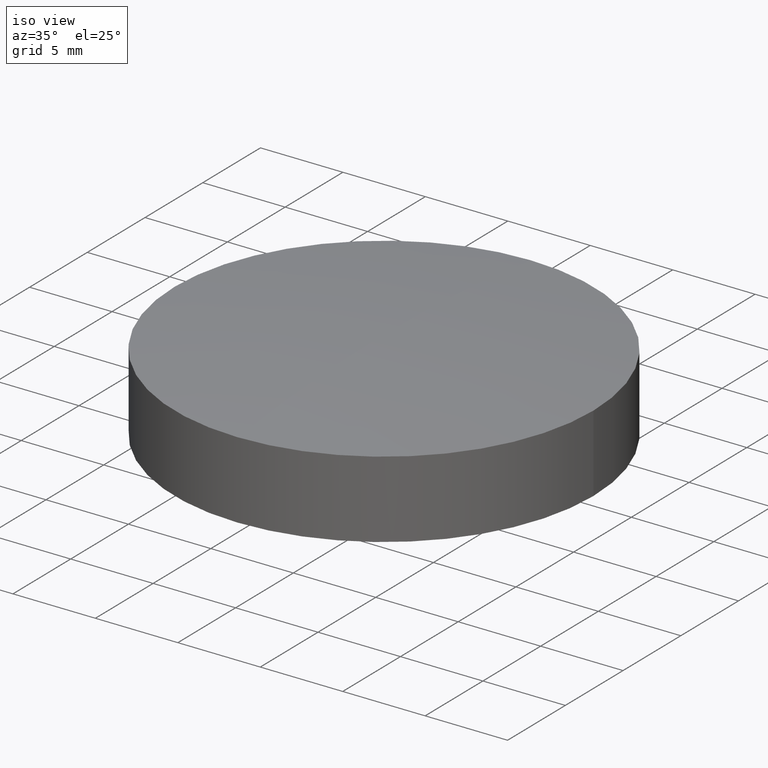
[diagram: clean part render]
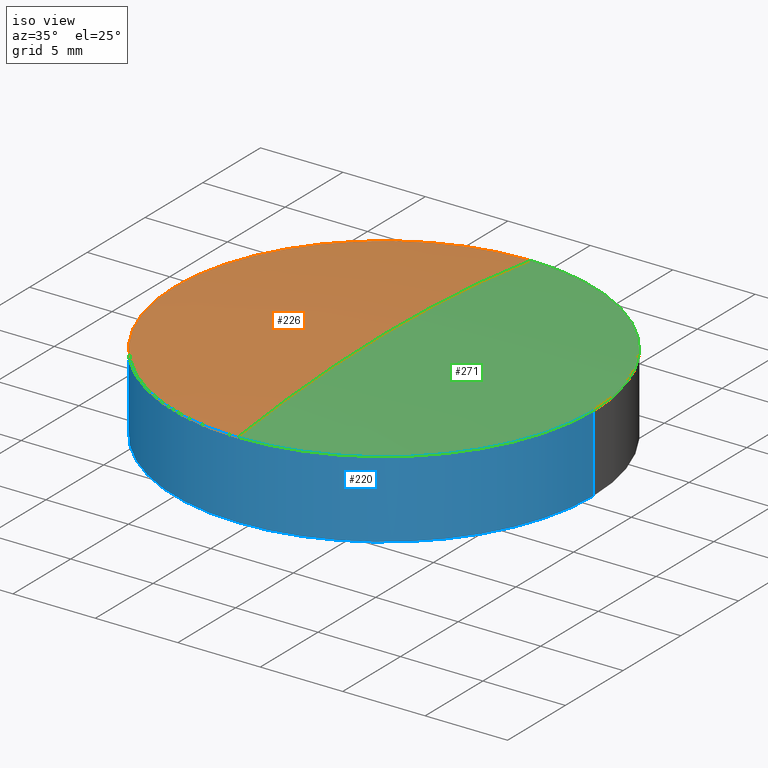
[diagram: same view with three faces highlighted in distinct colors, each labeled with its STEP entity id]
A machine part, iso view with three faces highlighted in distinct colors.
Their STEP definitions:

[orange] entity #226 — the highlighted spherical surface has radius 100 mm.
#1 = SPHERICAL_SURFACE ( 'NONE', #3, 100.0000000000000000 ) ;
#3 = AXIS2_PLACEMENT_3D ( 'NONE', #5, #9, #8 ) ;
#5 = CARTESIAN_POINT ( 'NONE',  ( 0.0000000000000000000, 0.0000000000000000000, -97.25569719235952000 ) ) ;
#8 = DIRECTION ( 'NONE',  ( 0.0000000000000000000, 1.000000000000000000, 0.0000000000000000000 ) ) ;
#9 = DIRECTION ( 'NONE',  ( -1.000000000000000000, 0.0000000000000000000, 0.0000000000000000000 ) ) ;
#11 = DIRECTION ( 'NONE',  ( 1.000000000000000000, 0.0000000000000000000, 0.0000000000000000000 ) ) ;
#19 = AXIS2_PLACEMENT_3D ( 'NONE', #21, #22, #11 ) ;
#20 = CIRCLE ( 'NONE', #19, 12.70000000000000100 ) ;
#21 = CARTESIAN_POINT ( 'NONE',  ( 0.0000000000000000000, 0.0000000000000000000, 1.934574508044651300 ) ) ;
#22 = DIRECTION ( 'NONE',  ( -0.0000000000000000000, -0.0000000000000000000, 1.000000000000000000 ) ) ;
#25 = DIRECTION ( 'NONE',  ( -0.0000000000000000000, -0.0000000000000000000, 1.000000000000000000 ) ) ;
#26 = CARTESIAN_POINT ( 'NONE',  ( 0.0000000000000000000, 12.69999999999999200, 1.934574508044653700 ) ) ;
#43 = CIRCLE ( 'NONE', #63, 100.0000000000000000 ) ;
#46 = CARTESIAN_POINT ( 'NONE',  ( 0.0000000000000000000, 6.123031769111886300E-015, 2.744302807640486300 ) ) ;
#47 = CARTESIAN_POINT ( 'NONE',  ( -1.555250069354418500E-015, -12.69999999999999200, 1.934574508044653700 ) ) ;
#48 = DIRECTION ( 'NONE',  ( -1.224606353822377300E-016, -1.000000000000000000, 0.0000000000000000000 ) ) ;
#49 = DIRECTION ( 'NONE',  ( 1.000000000000000000, 0.0000000000000000000, 0.0000000000000000000 ) ) ;
#54 = DIRECTION ( 'NONE',  ( -1.000000000000000000, 1.224606353822377300E-016, 0.0000000000000000000 ) ) ;
#55 = CARTESIAN_POINT ( 'NONE',  ( 0.0000000000000000000, 0.0000000000000000000, -97.25569719235952000 ) ) ;
#56 = AXIS2_PLACEMENT_3D ( 'NONE', #55, #54, #48 ) ;
#57 = CIRCLE ( 'NONE', #56, 100.0000000000000000 ) ;
#58 = AXIS2_PLACEMENT_3D ( 'NONE', #60, #25, #62 ) ;
#59 = CIRCLE ( 'NONE', #58, 12.70000000000000100 ) ;
#60 = CARTESIAN_POINT ( 'NONE',  ( 0.0000000000000000000, 0.0000000000000000000, 1.934574508044651300 ) ) ;
#62 = DIRECTION ( 'NONE',  ( 1.000000000000000000, 0.0000000000000000000, 0.0000000000000000000 ) ) ;
#63 = AXIS2_PLACEMENT_3D ( 'NONE', #68, #49, #67 ) ;
#67 = DIRECTION ( 'NONE',  ( 0.0000000000000000000, 0.0000000000000000000, -1.000000000000000000 ) ) ;
#68 = CARTESIAN_POINT ( 'NONE',  ( 0.0000000000000000000, 0.0000000000000000000, -97.25569719235952000 ) ) ;
#132 = CARTESIAN_POINT ( 'NONE',  ( -12.70000000000000100, 1.555250069354419300E-015, 1.934574508044651300 ) ) ;
#226 = ADVANCED_FACE ( 'NONE', ( #303 ), #1, .T. ) ;
#228 = ORIENTED_EDGE ( 'NONE', *, *, #263, .T. ) ;
#229 = ORIENTED_EDGE ( 'NONE', *, *, #236, .F. ) ;
#231 = EDGE_CURVE ( 'NONE', #237, #322, #20, .T. ) ;
#232 = ORIENTED_EDGE ( 'NONE', *, *, #238, .T. ) ;
#236 = EDGE_CURVE ( 'NONE', #237, #267, #43, .T. ) ;
#237 = VERTEX_POINT ( 'NONE', #26 ) ;
#238 = EDGE_CURVE ( 'NONE', #322, #266, #59, .T. ) ;
#263 = EDGE_CURVE ( 'NONE', #266, #267, #57, .T. ) ;
#266 = VERTEX_POINT ( 'NONE', #47 ) ;
#267 = VERTEX_POINT ( 'NONE', #46 ) ;
#268 = ORIENTED_EDGE ( 'NONE', *, *, #231, .T. ) ;
#269 = EDGE_LOOP ( 'NONE', ( #268, #232, #228, #229 ) ) ;
#303 = FACE_OUTER_BOUND ( 'NONE', #269, .T. ) ;
#322 = VERTEX_POINT ( 'NONE', #132 ) ;

[blue] entity #220 — the highlighted cylindrical surface (partial cylindrical patch) has radius 12.7 mm, axis along (-0, -0, 1).
#2 = CIRCLE ( 'NONE', #4, 12.70000000000000100 ) ;
#4 = AXIS2_PLACEMENT_3D ( 'NONE', #10, #6, #7 ) ;
#6 = DIRECTION ( 'NONE',  ( -0.0000000000000000000, -0.0000000000000000000, 1.000000000000000000 ) ) ;
#7 = DIRECTION ( 'NONE',  ( 1.000000000000000000, 0.0000000000000000000, 0.0000000000000000000 ) ) ;
#10 = CARTESIAN_POINT ( 'NONE',  ( 0.0000000000000000000, 0.0000000000000000000, 1.934574508044651300 ) ) ;
#13 = LINE ( 'NONE', #14, #16 ) ;
#14 = CARTESIAN_POINT ( 'NONE',  ( 12.70000000000000100, 0.0000000000000000000, 10.14940656248153400 ) ) ;
#15 = DIRECTION ( 'NONE',  ( -0.0000000000000000000, -0.0000000000000000000, 1.000000000000000000 ) ) ;
#16 = VECTOR ( 'NONE', #15, 1000.000000000000000 ) ;
#25 = DIRECTION ( 'NONE',  ( -0.0000000000000000000, -0.0000000000000000000, 1.000000000000000000 ) ) ;
#47 = CARTESIAN_POINT ( 'NONE',  ( -1.555250069354418500E-015, -12.69999999999999200, 1.934574508044653700 ) ) ;
#58 = AXIS2_PLACEMENT_3D ( 'NONE', #60, #25, #62 ) ;
#59 = CIRCLE ( 'NONE', #58, 12.70000000000000100 ) ;
#60 = CARTESIAN_POINT ( 'NONE',  ( 0.0000000000000000000, 0.0000000000000000000, 1.934574508044651300 ) ) ;
#61 = CARTESIAN_POINT ( 'NONE',  ( 12.70000000000000100, 0.0000000000000000000, 1.934574508044651300 ) ) ;
#62 = DIRECTION ( 'NONE',  ( 1.000000000000000000, 0.0000000000000000000, 0.0000000000000000000 ) ) ;
#123 = CARTESIAN_POINT ( 'NONE',  ( 0.0000000000000000000, 0.0000000000000000000, -2.744302807640479200 ) ) ;
#124 = CARTESIAN_POINT ( 'NONE',  ( 12.70000000000000100, 0.0000000000000000000, -2.744302807640479200 ) ) ;
#125 = CIRCLE ( 'NONE', #165, 12.70000000000000100 ) ;
#128 = CARTESIAN_POINT ( 'NONE',  ( -1.555250069354419300E-015, -12.69999999999999900, -2.744302807640481000 ) ) ;
#132 = CARTESIAN_POINT ( 'NONE',  ( -12.70000000000000100, 1.555250069354419300E-015, 1.934574508044651300 ) ) ;
#133 = CARTESIAN_POINT ( 'NONE',  ( -12.70000000000000100, 1.555250069354419300E-015, -2.744302807640479200 ) ) ;
#147 = DIRECTION ( 'NONE',  ( -0.0000000000000000000, -0.0000000000000000000, 1.000000000000000000 ) ) ;
#148 = VECTOR ( 'NONE', #147, 1000.000000000000000 ) ;
#149 = DIRECTION ( 'NONE',  ( -0.0000000000000000000, -0.0000000000000000000, 1.000000000000000000 ) ) ;
#162 = CARTESIAN_POINT ( 'NONE',  ( -12.70000000000000100, 1.555250069354419300E-015, 10.14940656248153400 ) ) ;
#163 = LINE ( 'NONE', #162, #148 ) ;
#165 = AXIS2_PLACEMENT_3D ( 'NONE', #123, #149, #168 ) ;
#168 = DIRECTION ( 'NONE',  ( 1.000000000000000000, 0.0000000000000000000, 0.0000000000000000000 ) ) ;
#212 = ORIENTED_EDGE ( 'NONE', *, *, #238, .F. ) ;
#216 = ORIENTED_EDGE ( 'NONE', *, *, #227, .F. ) ;
#220 = ADVANCED_FACE ( 'NONE', ( #251 ), #314, .T. ) ;
#221 = EDGE_LOOP ( 'NONE', ( #222, #223, #225, #258, #216, #212 ) ) ;
#222 = ORIENTED_EDGE ( 'NONE', *, *, #286, .F. ) ;
#223 = ORIENTED_EDGE ( 'NONE', *, *, #224, .T. ) ;
#224 = EDGE_CURVE ( 'NONE', #291, #276, #308, .T. ) ;
#225 = ORIENTED_EDGE ( 'NONE', *, *, #275, .T. ) ;
#227 = EDGE_CURVE ( 'NONE', #266, #262, #2, .T. ) ;
#234 = EDGE_CURVE ( 'NONE', #277, #262, #13, .T. ) ;
#238 = EDGE_CURVE ( 'NONE', #322, #266, #59, .T. ) ;
#251 = FACE_OUTER_BOUND ( 'NONE', #221, .T. ) ;
#258 = ORIENTED_EDGE ( 'NONE', *, *, #234, .T. ) ;
#262 = VERTEX_POINT ( 'NONE', #61 ) ;
#266 = VERTEX_POINT ( 'NONE', #47 ) ;
#275 = EDGE_CURVE ( 'NONE', #276, #277, #125, .T. ) ;
#276 = VERTEX_POINT ( 'NONE', #128 ) ;
#277 = VERTEX_POINT ( 'NONE', #124 ) ;
#286 = EDGE_CURVE ( 'NONE', #291, #322, #163, .T. ) ;
#291 = VERTEX_POINT ( 'NONE', #133 ) ;
#304 = DIRECTION ( 'NONE',  ( 1.000000000000000000, 0.0000000000000000000, 0.0000000000000000000 ) ) ;
#305 = DIRECTION ( 'NONE',  ( -0.0000000000000000000, -0.0000000000000000000, 1.000000000000000000 ) ) ;
#306 = CARTESIAN_POINT ( 'NONE',  ( 0.0000000000000000000, 0.0000000000000000000, -2.744302807640479200 ) ) ;
#307 = AXIS2_PLACEMENT_3D ( 'NONE', #306, #305, #304 ) ;
#308 = CIRCLE ( 'NONE', #307, 12.70000000000000100 ) ;
#310 = DIRECTION ( 'NONE',  ( 1.000000000000000000, 0.0000000000000000000, 0.0000000000000000000 ) ) ;
#311 = DIRECTION ( 'NONE',  ( -0.0000000000000000000, -0.0000000000000000000, 1.000000000000000000 ) ) ;
#312 = CARTESIAN_POINT ( 'NONE',  ( 0.0000000000000000000, 0.0000000000000000000, 10.14940656248153400 ) ) ;
#313 = AXIS2_PLACEMENT_3D ( 'NONE', #312, #311, #310 ) ;
#314 = CYLINDRICAL_SURFACE ( 'NONE', #313, 12.70000000000000100 ) ;
#322 = VERTEX_POINT ( 'NONE', #132 ) ;

[green] entity #271 — the highlighted spherical surface has radius 100 mm.
#2 = CIRCLE ( 'NONE', #4, 12.70000000000000100 ) ;
#4 = AXIS2_PLACEMENT_3D ( 'NONE', #10, #6, #7 ) ;
#6 = DIRECTION ( 'NONE',  ( -0.0000000000000000000, -0.0000000000000000000, 1.000000000000000000 ) ) ;
#7 = DIRECTION ( 'NONE',  ( 1.000000000000000000, 0.0000000000000000000, 0.0000000000000000000 ) ) ;
#10 = CARTESIAN_POINT ( 'NONE',  ( 0.0000000000000000000, 0.0000000000000000000, 1.934574508044651300 ) ) ;
#26 = CARTESIAN_POINT ( 'NONE',  ( 0.0000000000000000000, 12.69999999999999200, 1.934574508044653700 ) ) ;
#38 = DIRECTION ( 'NONE',  ( 0.0000000000000000000, 1.000000000000000000, 0.0000000000000000000 ) ) ;
#39 = DIRECTION ( 'NONE',  ( -1.000000000000000000, 0.0000000000000000000, 0.0000000000000000000 ) ) ;
#40 = AXIS2_PLACEMENT_3D ( 'NONE', #64, #39, #38 ) ;
#43 = CIRCLE ( 'NONE', #63, 100.0000000000000000 ) ;
#45 = FACE_OUTER_BOUND ( 'NONE', #264, .T. ) ;
#46 = CARTESIAN_POINT ( 'NONE',  ( 0.0000000000000000000, 6.123031769111886300E-015, 2.744302807640486300 ) ) ;
#47 = CARTESIAN_POINT ( 'NONE',  ( -1.555250069354418500E-015, -12.69999999999999200, 1.934574508044653700 ) ) ;
#48 = DIRECTION ( 'NONE',  ( -1.224606353822377300E-016, -1.000000000000000000, 0.0000000000000000000 ) ) ;
#49 = DIRECTION ( 'NONE',  ( 1.000000000000000000, 0.0000000000000000000, 0.0000000000000000000 ) ) ;
#54 = DIRECTION ( 'NONE',  ( -1.000000000000000000, 1.224606353822377300E-016, 0.0000000000000000000 ) ) ;
#55 = CARTESIAN_POINT ( 'NONE',  ( 0.0000000000000000000, 0.0000000000000000000, -97.25569719235952000 ) ) ;
#56 = AXIS2_PLACEMENT_3D ( 'NONE', #55, #54, #48 ) ;
#57 = CIRCLE ( 'NONE', #56, 100.0000000000000000 ) ;
#61 = CARTESIAN_POINT ( 'NONE',  ( 12.70000000000000100, 0.0000000000000000000, 1.934574508044651300 ) ) ;
#63 = AXIS2_PLACEMENT_3D ( 'NONE', #68, #49, #67 ) ;
#64 = CARTESIAN_POINT ( 'NONE',  ( 0.0000000000000000000, 0.0000000000000000000, -97.25569719235952000 ) ) ;
#65 = SPHERICAL_SURFACE ( 'NONE', #40, 100.0000000000000000 ) ;
#67 = DIRECTION ( 'NONE',  ( 0.0000000000000000000, 0.0000000000000000000, -1.000000000000000000 ) ) ;
#68 = CARTESIAN_POINT ( 'NONE',  ( 0.0000000000000000000, 0.0000000000000000000, -97.25569719235952000 ) ) ;
#75 = DIRECTION ( 'NONE',  ( 1.000000000000000000, 0.0000000000000000000, 0.0000000000000000000 ) ) ;
#76 = DIRECTION ( 'NONE',  ( -0.0000000000000000000, -0.0000000000000000000, 1.000000000000000000 ) ) ;
#77 = CARTESIAN_POINT ( 'NONE',  ( 0.0000000000000000000, 0.0000000000000000000, 1.934574508044651300 ) ) ;
#78 = AXIS2_PLACEMENT_3D ( 'NONE', #77, #76, #75 ) ;
#79 = CIRCLE ( 'NONE', #78, 12.70000000000000100 ) ;
#227 = EDGE_CURVE ( 'NONE', #266, #262, #2, .T. ) ;
#230 = ORIENTED_EDGE ( 'NONE', *, *, #263, .F. ) ;
#236 = EDGE_CURVE ( 'NONE', #237, #267, #43, .T. ) ;
#237 = VERTEX_POINT ( 'NONE', #26 ) ;
#261 = ORIENTED_EDGE ( 'NONE', *, *, #227, .T. ) ;
#262 = VERTEX_POINT ( 'NONE', #61 ) ;
#263 = EDGE_CURVE ( 'NONE', #266, #267, #57, .T. ) ;
#264 = EDGE_LOOP ( 'NONE', ( #230, #261, #265, #272 ) ) ;
#265 = ORIENTED_EDGE ( 'NONE', *, *, #270, .T. ) ;
#266 = VERTEX_POINT ( 'NONE', #47 ) ;
#267 = VERTEX_POINT ( 'NONE', #46 ) ;
#270 = EDGE_CURVE ( 'NONE', #262, #237, #79, .T. ) ;
#271 = ADVANCED_FACE ( 'NONE', ( #45 ), #65, .T. ) ;
#272 = ORIENTED_EDGE ( 'NONE', *, *, #236, .T. ) ;